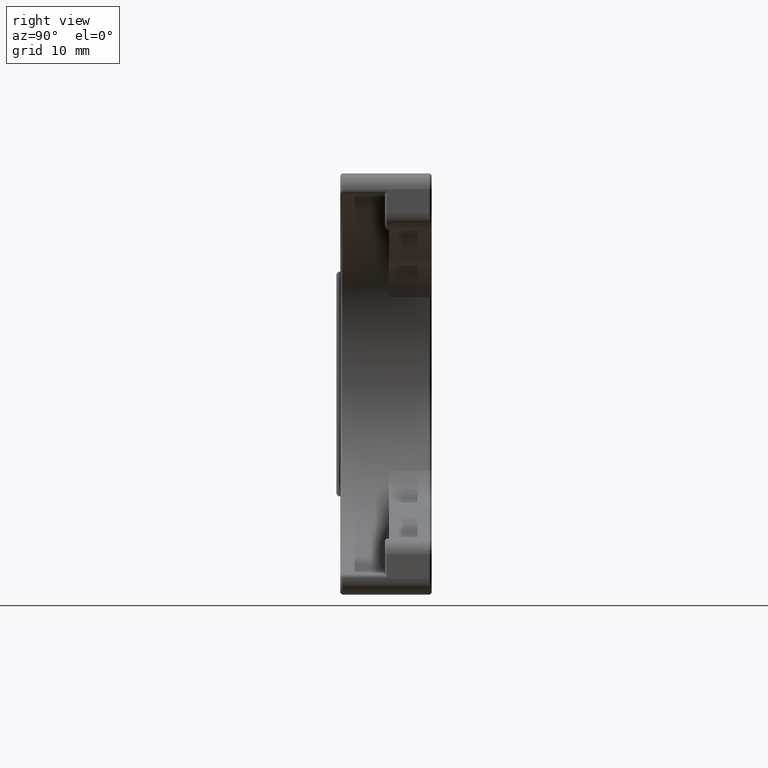
[diagram: clean part render]
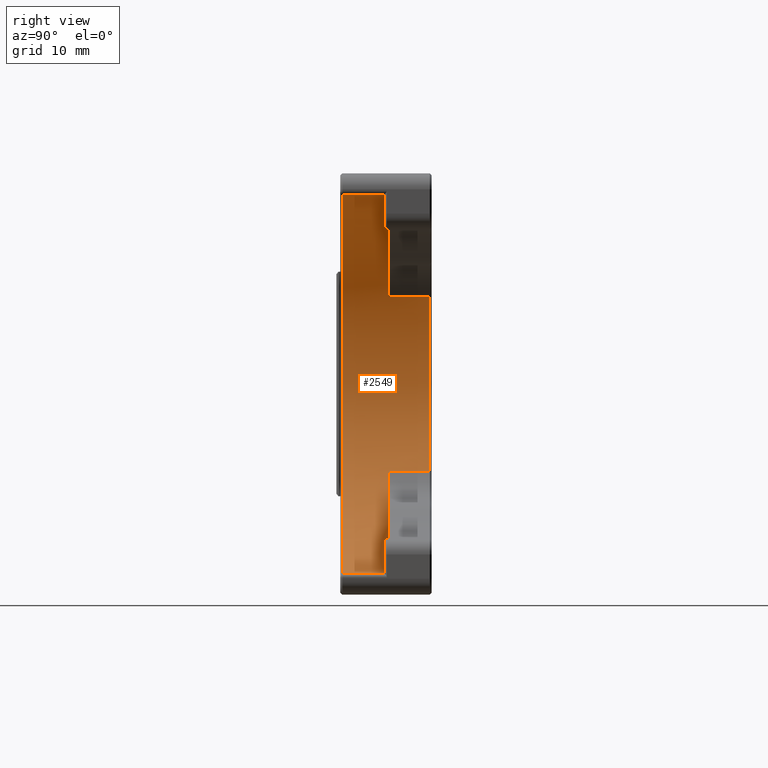
[diagram: same view with one face highlighted and labeled with its STEP entity id]
A machine part, right view. The second image highlights one B-rep face of the part: STEP entity #2549.
In plain terms, the highlighted cylindrical surface (partial cylindrical patch) has radius 23.85 mm, axis along (-0, -1, -0).
Its self-contained STEP definition (entity closure, byte-faithful):
#1 = EDGE_CURVE ( 'NONE', #1009, #1774, #1503, .T. ) ;
#15 = CARTESIAN_POINT ( 'NONE',  ( 0.000000000000000000, 0.7500000000000006661, 23.85000000000000142 ) ) ;
#16 = LINE ( 'NONE', #2051, #2934 ) ;
#33 = CARTESIAN_POINT ( 'NONE',  ( -5.406801007556668814, 6.599999999999999645, -23.22905514360591539 ) ) ;
#47 = VECTOR ( 'NONE', #182, 1000.000000000000000 ) ;
#100 = EDGE_CURVE ( 'NONE', #1710, #346, #1531, .T. ) ;
#146 = VERTEX_POINT ( 'NONE', #2471 ) ;
#182 = DIRECTION ( 'NONE',  ( -0.000000000000000000, -1.000000000000000000, -0.000000000000000000 ) ) ;
#185 = DIRECTION ( 'NONE',  ( 0.000000000000000000, -1.000000000000000000, 0.000000000000000000 ) ) ;
#215 = CARTESIAN_POINT ( 'NONE',  ( 0.000000000000000000, 6.599999999999999645, 0.000000000000000000 ) ) ;
#245 = DIRECTION ( 'NONE',  ( -0.000000000000000000, -1.000000000000000000, -0.000000000000000000 ) ) ;
#253 = CARTESIAN_POINT ( 'NONE',  ( -21.19270795598177060, 6.599999999999999645, -10.94036697247705980 ) ) ;
#289 = CYLINDRICAL_SURFACE ( 'NONE', #643, 23.85000000000000142 ) ;
#316 = VECTOR ( 'NONE', #2117, 1000.000000000000000 ) ;
#345 = VECTOR ( 'NONE', #2445, 1000.000000000000000 ) ;
#346 = VERTEX_POINT ( 'NONE', #33 ) ;
#428 = EDGE_CURVE ( 'NONE', #992, #1774, #1790, .T. ) ;
#529 = EDGE_CURVE ( 'NONE', #576, #2458, #1378, .T. ) ;
#550 = ORIENTED_EDGE ( 'NONE', *, *, #3030, .T. ) ;
#571 = CARTESIAN_POINT ( 'NONE',  ( -21.19270795598177060, 0.000000000000000000, -10.94036697247705980 ) ) ;
#576 = VERTEX_POINT ( 'NONE', #1199 ) ;
#643 = AXIS2_PLACEMENT_3D ( 'NONE', #1583, #2589, #1419 ) ;
#672 = ORIENTED_EDGE ( 'NONE', *, *, #1751, .F. ) ;
#683 = LINE ( 'NONE', #2412, #47 ) ;
#724 = CARTESIAN_POINT ( 'NONE',  ( -21.19270795598177770, 6.599999999999999645, 10.94036697247705270 ) ) ;
#916 = ORIENTED_EDGE ( 'NONE', *, *, #1194, .F. ) ;
#941 = AXIS2_PLACEMENT_3D ( 'NONE', #1926, #1709, #2712 ) ;
#979 = LINE ( 'NONE', #2259, #1993 ) ;
#992 = VERTEX_POINT ( 'NONE', #15 ) ;
#1009 = VERTEX_POINT ( 'NONE', #2319 ) ;
#1011 = DIRECTION ( 'NONE',  ( -0.000000000000000000, -1.000000000000000000, -0.000000000000000000 ) ) ;
#1077 = DIRECTION ( 'NONE',  ( -0.000000000000000000, -1.000000000000000000, -0.000000000000000000 ) ) ;
#1164 = EDGE_LOOP ( 'NONE', ( #1644, #1573, #3114, #672, #2067, #1928, #550, #2344, #916, #1555, #1425, #1906 ) ) ;
#1194 = EDGE_CURVE ( 'NONE', #1643, #146, #2183, .T. ) ;
#1199 = CARTESIAN_POINT ( 'NONE',  ( 0.000000000000000000, 6.099999999999999645, 23.85000000000000142 ) ) ;
#1247 = CARTESIAN_POINT ( 'NONE',  ( 0.000000000000000000, 6.099999999999999645, 0.000000000000000000 ) ) ;
#1271 = EDGE_CURVE ( 'NONE', #2833, #1643, #1581, .T. ) ;
#1378 = CIRCLE ( 'NONE', #1696, 23.85000000000000142 ) ;
#1379 = CARTESIAN_POINT ( 'NONE',  ( 0.000000000000000000, 0.7500000000000006661, -23.85000000000000142 ) ) ;
#1419 = DIRECTION ( 'NONE',  ( 0.000000000000000000, 0.000000000000000000, -1.000000000000000000 ) ) ;
#1425 = ORIENTED_EDGE ( 'NONE', *, *, #2021, .T. ) ;
#1430 = DIRECTION ( 'NONE',  ( 0.000000000000000000, 0.000000000000000000, 1.000000000000000000 ) ) ;
#1432 = CARTESIAN_POINT ( 'NONE',  ( -21.19270795598177770, 0.000000000000000000, 10.94036697247705270 ) ) ;
#1472 = VERTEX_POINT ( 'NONE', #2689 ) ;
#1503 = LINE ( 'NONE', #2506, #2585 ) ;
#1531 = CIRCLE ( 'NONE', #941, 23.85000000000000142 ) ;
#1552 = CIRCLE ( 'NONE', #1601, 23.85000000000000142 ) ;
#1555 = ORIENTED_EDGE ( 'NONE', *, *, #1271, .F. ) ;
#1573 = ORIENTED_EDGE ( 'NONE', *, *, #428, .T. ) ;
#1581 = CIRCLE ( 'NONE', #2955, 23.85000000000000142 ) ;
#1583 = CARTESIAN_POINT ( 'NONE',  ( 0.000000000000000000, 6.099999999999999645, 0.000000000000000000 ) ) ;
#1601 = AXIS2_PLACEMENT_3D ( 'NONE', #1815, #2884, #2651 ) ;
#1643 = VERTEX_POINT ( 'NONE', #724 ) ;
#1644 = ORIENTED_EDGE ( 'NONE', *, *, #2451, .T. ) ;
#1696 = AXIS2_PLACEMENT_3D ( 'NONE', #1247, #185, #2000 ) ;
#1699 = DIRECTION ( 'NONE',  ( 0.000000000000000000, -1.000000000000000000, 0.000000000000000000 ) ) ;
#1709 = DIRECTION ( 'NONE',  ( 0.000000000000000000, -1.000000000000000000, 0.000000000000000000 ) ) ;
#1710 = VERTEX_POINT ( 'NONE', #253 ) ;
#1751 = EDGE_CURVE ( 'NONE', #1472, #1009, #1552, .T. ) ;
#1774 = VERTEX_POINT ( 'NONE', #1379 ) ;
#1790 = CIRCLE ( 'NONE', #2217, 23.85000000000000142 ) ;
#1815 = CARTESIAN_POINT ( 'NONE',  ( 0.000000000000000000, 6.099999999999999645, 0.000000000000000000 ) ) ;
#1894 = CARTESIAN_POINT ( 'NONE',  ( -21.19270795598177060, 11.75000000000002842, -10.94036697247705980 ) ) ;
#1906 = ORIENTED_EDGE ( 'NONE', *, *, #529, .F. ) ;
#1920 = DIRECTION ( 'NONE',  ( 0.000000000000000000, -1.000000000000000000, 0.000000000000000000 ) ) ;
#1926 = CARTESIAN_POINT ( 'NONE',  ( 0.000000000000000000, 6.599999999999999645, 0.000000000000000000 ) ) ;
#1928 = ORIENTED_EDGE ( 'NONE', *, *, #100, .F. ) ;
#1966 = DIRECTION ( 'NONE',  ( 0.000000000000000000, 1.000000000000000000, 0.000000000000000000 ) ) ;
#1968 = DIRECTION ( 'NONE',  ( 0.000000000000000000, 0.000000000000000000, -1.000000000000000000 ) ) ;
#1993 = VECTOR ( 'NONE', #1011, 1000.000000000000000 ) ;
#2000 = DIRECTION ( 'NONE',  ( 0.000000000000000000, 0.000000000000000000, -1.000000000000000000 ) ) ;
#2021 = EDGE_CURVE ( 'NONE', #2833, #2458, #979, .T. ) ;
#2051 = CARTESIAN_POINT ( 'NONE',  ( 0.000000000000000000, 6.099999999999999645, 23.85000000000000142 ) ) ;
#2067 = ORIENTED_EDGE ( 'NONE', *, *, #3138, .F. ) ;
#2117 = DIRECTION ( 'NONE',  ( -0.000000000000000000, 1.000000000000000000, -0.000000000000000000 ) ) ;
#2167 = CARTESIAN_POINT ( 'NONE',  ( 0.000000000000000000, 11.75000000000002842, 0.000000000000000000 ) ) ;
#2183 = LINE ( 'NONE', #1432, #345 ) ;
#2217 = AXIS2_PLACEMENT_3D ( 'NONE', #3157, #1920, #2322 ) ;
#2259 = CARTESIAN_POINT ( 'NONE',  ( -5.406801007556659933, 6.599999999999999645, 23.22905514360591539 ) ) ;
#2290 = VERTEX_POINT ( 'NONE', #1894 ) ;
#2319 = CARTESIAN_POINT ( 'NONE',  ( 0.000000000000000000, 6.099999999999999645, -23.85000000000000142 ) ) ;
#2322 = DIRECTION ( 'NONE',  ( 0.000000000000000000, 0.000000000000000000, -1.000000000000000000 ) ) ;
#2344 = ORIENTED_EDGE ( 'NONE', *, *, #3212, .T. ) ;
#2367 = LINE ( 'NONE', #571, #316 ) ;
#2412 = CARTESIAN_POINT ( 'NONE',  ( -5.406801007556668814, 6.599999999999999645, -23.22905514360591539 ) ) ;
#2445 = DIRECTION ( 'NONE',  ( -0.000000000000000000, 1.000000000000000000, -0.000000000000000000 ) ) ;
#2451 = EDGE_CURVE ( 'NONE', #576, #992, #16, .T. ) ;
#2458 = VERTEX_POINT ( 'NONE', #2793 ) ;
#2471 = CARTESIAN_POINT ( 'NONE',  ( -21.19270795598177770, 11.75000000000002842, 10.94036697247705270 ) ) ;
#2506 = CARTESIAN_POINT ( 'NONE',  ( 0.000000000000000000, 6.099999999999999645, -23.85000000000000142 ) ) ;
#2549 = ADVANCED_FACE ( 'NONE', ( #2572 ), #289, .F. ) ;
#2572 = FACE_OUTER_BOUND ( 'NONE', #1164, .T. ) ;
#2585 = VECTOR ( 'NONE', #245, 1000.000000000000000 ) ;
#2589 = DIRECTION ( 'NONE',  ( -0.000000000000000000, -1.000000000000000000, -0.000000000000000000 ) ) ;
#2651 = DIRECTION ( 'NONE',  ( 0.000000000000000000, 0.000000000000000000, -1.000000000000000000 ) ) ;
#2689 = CARTESIAN_POINT ( 'NONE',  ( -5.406801007556668814, 6.099999999999999645, -23.22905514360591539 ) ) ;
#2712 = DIRECTION ( 'NONE',  ( 0.000000000000000000, 0.000000000000000000, -1.000000000000000000 ) ) ;
#2793 = CARTESIAN_POINT ( 'NONE',  ( -5.406801007556671479, 6.099999999999999645, 23.22905514360591539 ) ) ;
#2833 = VERTEX_POINT ( 'NONE', #2941 ) ;
#2877 = CIRCLE ( 'NONE', #3307, 23.85000000000000142 ) ;
#2884 = DIRECTION ( 'NONE',  ( 0.000000000000000000, -1.000000000000000000, 0.000000000000000000 ) ) ;
#2934 = VECTOR ( 'NONE', #1077, 1000.000000000000000 ) ;
#2941 = CARTESIAN_POINT ( 'NONE',  ( -5.406801007556659933, 6.599999999999999645, 23.22905514360591539 ) ) ;
#2955 = AXIS2_PLACEMENT_3D ( 'NONE', #215, #1699, #1968 ) ;
#3030 = EDGE_CURVE ( 'NONE', #1710, #2290, #2367, .T. ) ;
#3114 = ORIENTED_EDGE ( 'NONE', *, *, #1, .F. ) ;
#3138 = EDGE_CURVE ( 'NONE', #346, #1472, #683, .T. ) ;
#3157 = CARTESIAN_POINT ( 'NONE',  ( 0.000000000000000000, 0.7500000000000006661, 0.000000000000000000 ) ) ;
#3212 = EDGE_CURVE ( 'NONE', #2290, #146, #2877, .T. ) ;
#3307 = AXIS2_PLACEMENT_3D ( 'NONE', #2167, #1966, #1430 ) ;